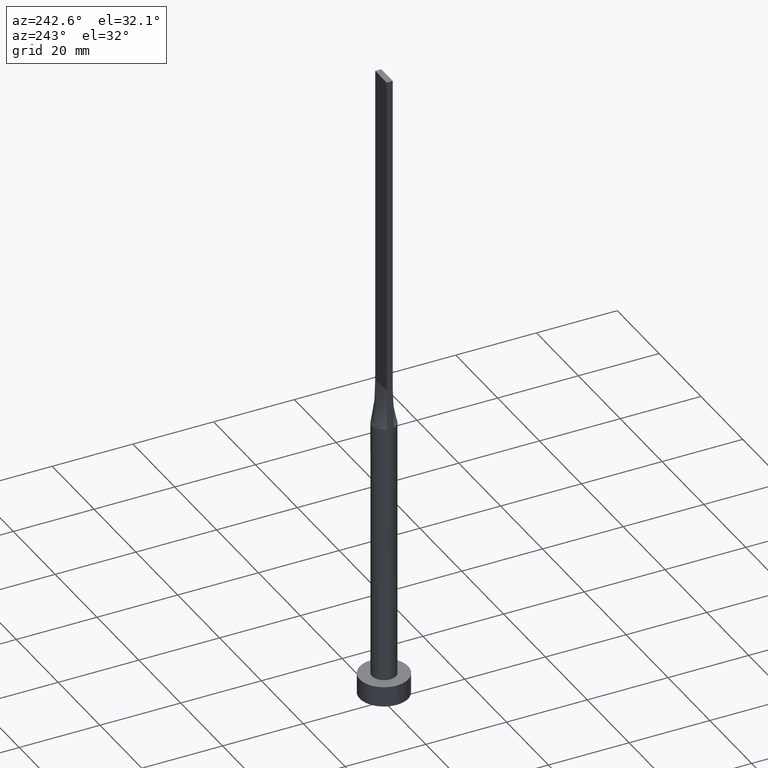
[diagram: clean part render]
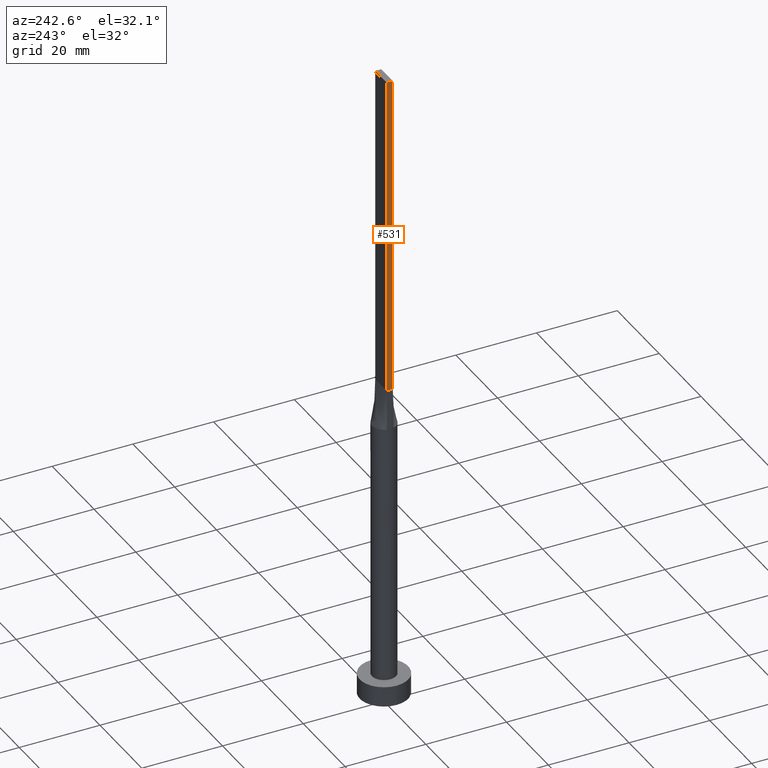
[diagram: same view with one face highlighted and labeled with its STEP entity id]
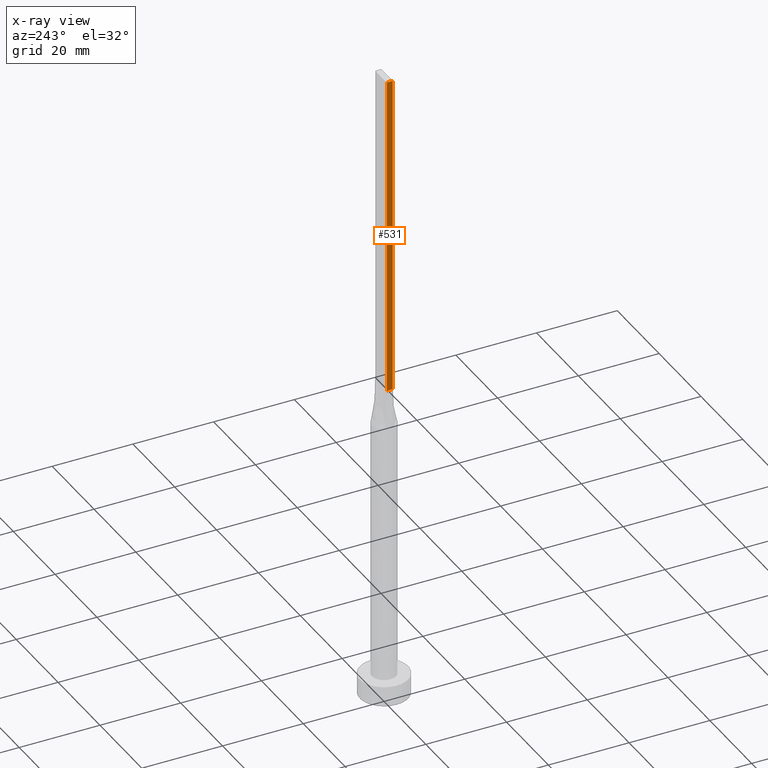
[diagram: x-ray of the same camera — body ghosted, the highlighted face saturated]
A machine part, auxiliary view. The second image highlights one B-rep face of the part: STEP entity #531.
The next image is the same camera in x-ray: the body ghosted, the highlighted face saturated — about 0% of this face is hidden behind the body in this view.
In plain terms, the highlighted planar face has unit normal (1, 0, -0).
Its self-contained STEP definition (entity closure, byte-faithful):
#13 = CARTESIAN_POINT ( 'NONE',  ( -2.750000000000000000, 0.7500000000000002220, 80.00000000000000000 ) ) ;
#23 = VECTOR ( 'NONE', #492, 1000.000000000000000 ) ;
#31 = EDGE_CURVE ( 'NONE', #341, #424, #259, .T. ) ;
#40 = FACE_OUTER_BOUND ( 'NONE', #572, .T. ) ;
#73 = DIRECTION ( 'NONE',  ( -0.000000000000000000, -0.000000000000000000, -1.000000000000000000 ) ) ;
#74 = AXIS2_PLACEMENT_3D ( 'NONE', #165, #527, #346 ) ;
#77 = ORIENTED_EDGE ( 'NONE', *, *, #366, .T. ) ;
#78 = EDGE_CURVE ( 'NONE', #235, #260, #106, .T. ) ;
#86 = DIRECTION ( 'NONE',  ( 0.000000000000000000, -1.000000000000000000, 0.000000000000000000 ) ) ;
#106 = LINE ( 'NONE', #281, #485 ) ;
#124 = LINE ( 'NONE', #298, #23 ) ;
#153 = PLANE ( 'NONE',  #74 ) ;
#165 = CARTESIAN_POINT ( 'NONE',  ( -2.750000000000000000, 0.7500000000000002220, 160.0000000000000000 ) ) ;
#171 = VECTOR ( 'NONE', #73, 1000.000000000000000 ) ;
#235 = VERTEX_POINT ( 'NONE', #496 ) ;
#254 = CARTESIAN_POINT ( 'NONE',  ( -2.750000000000000000, 0.7500000000000002220, 80.00000000000000000 ) ) ;
#259 = LINE ( 'NONE', #13, #540 ) ;
#260 = VERTEX_POINT ( 'NONE', #315 ) ;
#281 = CARTESIAN_POINT ( 'NONE',  ( -2.750000000000000000, 0.7500000000000002220, 160.0000000000000000 ) ) ;
#298 = CARTESIAN_POINT ( 'NONE',  ( -2.750000000000000000, -0.7499999999999994449, 160.0000000000000000 ) ) ;
#315 = CARTESIAN_POINT ( 'NONE',  ( -2.750000000000000000, -0.7499999999999994449, 160.0000000000000000 ) ) ;
#318 = EDGE_CURVE ( 'NONE', #260, #424, #124, .T. ) ;
#341 = VERTEX_POINT ( 'NONE', #254 ) ;
#346 = DIRECTION ( 'NONE',  ( -0.000000000000000000, 0.000000000000000000, -1.000000000000000000 ) ) ;
#366 = EDGE_CURVE ( 'NONE', #235, #341, #575, .T. ) ;
#369 = ORIENTED_EDGE ( 'NONE', *, *, #318, .F. ) ;
#380 = ORIENTED_EDGE ( 'NONE', *, *, #31, .T. ) ;
#409 = ORIENTED_EDGE ( 'NONE', *, *, #78, .F. ) ;
#424 = VERTEX_POINT ( 'NONE', #489 ) ;
#455 = DIRECTION ( 'NONE',  ( 0.000000000000000000, -1.000000000000000000, 0.000000000000000000 ) ) ;
#485 = VECTOR ( 'NONE', #86, 1000.000000000000000 ) ;
#489 = CARTESIAN_POINT ( 'NONE',  ( -2.750000000000000000, -0.7499999999999994449, 80.00000000000000000 ) ) ;
#492 = DIRECTION ( 'NONE',  ( -0.000000000000000000, -0.000000000000000000, -1.000000000000000000 ) ) ;
#496 = CARTESIAN_POINT ( 'NONE',  ( -2.750000000000000000, 0.7500000000000002220, 160.0000000000000000 ) ) ;
#527 = DIRECTION ( 'NONE',  ( 1.000000000000000000, 0.000000000000000000, -0.000000000000000000 ) ) ;
#531 = ADVANCED_FACE ( 'NONE', ( #40 ), #153, .F. ) ;
#540 = VECTOR ( 'NONE', #455, 1000.000000000000000 ) ;
#569 = CARTESIAN_POINT ( 'NONE',  ( -2.750000000000000000, 0.7500000000000002220, 160.0000000000000000 ) ) ;
#572 = EDGE_LOOP ( 'NONE', ( #380, #369, #409, #77 ) ) ;
#575 = LINE ( 'NONE', #569, #171 ) ;